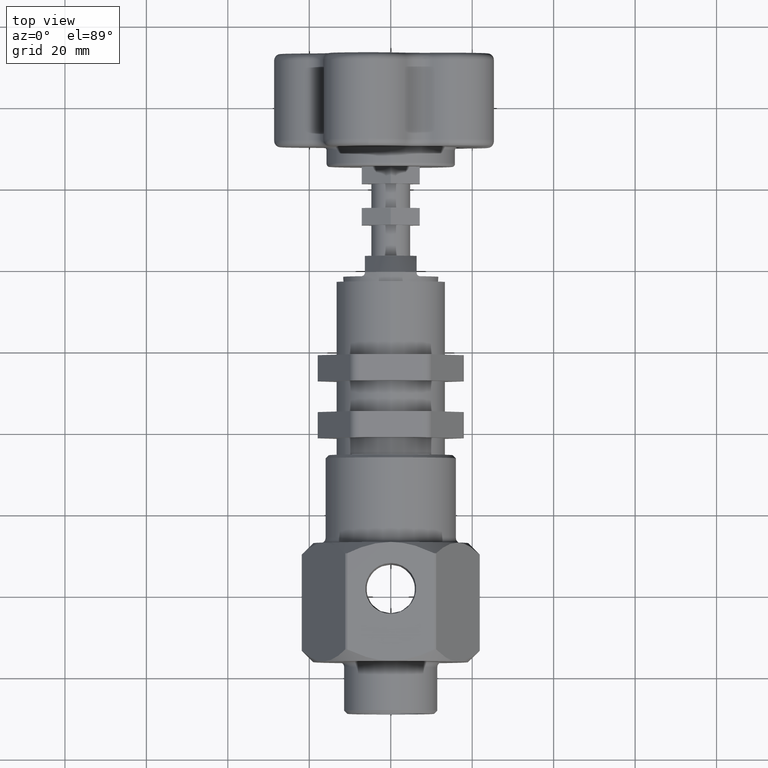
[diagram: clean part render]
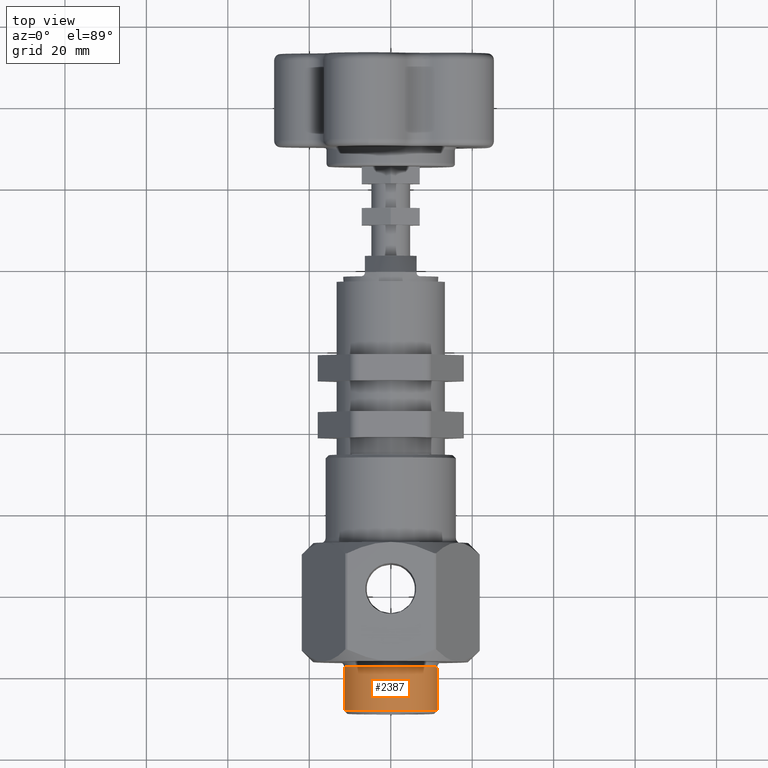
[diagram: same view with one face highlighted and labeled with its STEP entity id]
A machine part, top view. The second image highlights one B-rep face of the part: STEP entity #2387.
In plain terms, the highlighted cylindrical surface (partial cylindrical patch) has radius 11.43 mm, axis along (-0, 1, -0).
Its self-contained STEP definition (entity closure, byte-faithful):
#271 = VERTEX_POINT ( 'NONE', #7735 ) ;
#560 = DIRECTION ( 'NONE',  ( -5.302876193624532100E-017, 1.000000000000000000, -3.061616997868382400E-017 ) ) ;
#680 = VERTEX_POINT ( 'NONE', #2127 ) ;
#1013 = DIRECTION ( 'NONE',  ( -5.302876193624532700E-017, 1.000000000000000000, -3.061616997868382400E-017 ) ) ;
#1215 = DIRECTION ( 'NONE',  ( -5.302876193624532700E-017, 1.000000000000000000, -3.061616997868382400E-017 ) ) ;
#1565 = ORIENTED_EDGE ( 'NONE', *, *, #4949, .T. ) ;
#1704 = DIRECTION ( 'NONE',  ( -5.302876193624532700E-017, 1.000000000000000000, -3.061616997868382400E-017 ) ) ;
#1867 = CARTESIAN_POINT ( 'NONE',  ( 0.4500000000000001800, 1.033450559264014000, -5.147124618755402200E-017 ) ) ;
#1911 = CYLINDRICAL_SURFACE ( 'NONE', #2375, 0.4500000000000001800 ) ;
#2127 = CARTESIAN_POINT ( 'NONE',  ( -0.4500000000000000700, -1.484999999999999000, 1.204050665805496000E-016 ) ) ;
#2346 = DIRECTION ( 'NONE',  ( -1.000000000000000000, 0.0000000000000000000, 1.665334536937734600E-016 ) ) ;
#2375 = AXIS2_PLACEMENT_3D ( 'NONE', #6071, #1704, #2346 ) ;
#2387 = ADVANCED_FACE ( 'NONE', ( #4386 ), #1911, .T. ) ;
#2998 = VERTEX_POINT ( 'NONE', #7304 ) ;
#3017 = AXIS2_PLACEMENT_3D ( 'NONE', #4804, #1013, #5451 ) ;
#3018 = VECTOR ( 'NONE', #5663, 39.37007874015748100 ) ;
#3081 = CARTESIAN_POINT ( 'NONE',  ( -0.4500000000000001800, 1.033450559264014000, 4.329975617521123800E-017 ) ) ;
#3100 = CIRCLE ( 'NONE', #3017, 0.4500000000000001800 ) ;
#3215 = LINE ( 'NONE', #1867, #3018 ) ;
#4372 = CIRCLE ( 'NONE', #8030, 0.4500000000000001800 ) ;
#4386 = FACE_OUTER_BOUND ( 'NONE', #6258, .T. ) ;
#4429 = VERTEX_POINT ( 'NONE', #6114 ) ;
#4764 = EDGE_CURVE ( 'NONE', #271, #4429, #3215, .T. ) ;
#4804 = CARTESIAN_POINT ( 'NONE',  ( 1.351678914093506400E-016, -1.904999999999998900, 5.832380380939873300E-017 ) ) ;
#4949 = EDGE_CURVE ( 'NONE', #2998, #271, #3100, .T. ) ;
#5011 = CARTESIAN_POINT ( 'NONE',  ( 1.128958113961275900E-016, -1.484999999999999000, 4.546501241835152200E-017 ) ) ;
#5146 = ORIENTED_EDGE ( 'NONE', *, *, #7008, .F. ) ;
#5451 = DIRECTION ( 'NONE',  ( 1.000000000000000000, 0.0000000000000000000, -1.665334536937734600E-016 ) ) ;
#5513 = ORIENTED_EDGE ( 'NONE', *, *, #5877, .F. ) ;
#5647 = DIRECTION ( 'NONE',  ( -1.000000000000000000, 0.0000000000000000000, 1.665334536937734600E-016 ) ) ;
#5663 = DIRECTION ( 'NONE',  ( -5.302876193624532100E-017, 1.000000000000000000, -3.061616997868382400E-017 ) ) ;
#5877 = EDGE_CURVE ( 'NONE', #680, #4429, #4372, .T. ) ;
#6071 = CARTESIAN_POINT ( 'NONE',  ( -2.065450375928766600E-017, 1.033450559264014000, -3.164029798698684600E-017 ) ) ;
#6082 = VECTOR ( 'NONE', #560, 39.37007874015748100 ) ;
#6114 = CARTESIAN_POINT ( 'NONE',  ( 0.4500000000000002300, -1.484999999999999000, 3.206345991330794900E-017 ) ) ;
#6258 = EDGE_LOOP ( 'NONE', ( #1565, #6633, #5513, #5146 ) ) ;
#6633 = ORIENTED_EDGE ( 'NONE', *, *, #4764, .T. ) ;
#7008 = EDGE_CURVE ( 'NONE', #2998, #680, #7772, .T. ) ;
#7304 = CARTESIAN_POINT ( 'NONE',  ( -0.4500000000000000700, -1.904999999999998900, 1.332638579715968200E-016 ) ) ;
#7735 = CARTESIAN_POINT ( 'NONE',  ( 0.4500000000000003400, -1.904999999999998900, 3.849285560883157000E-017 ) ) ;
#7772 = LINE ( 'NONE', #3081, #6082 ) ;
#8030 = AXIS2_PLACEMENT_3D ( 'NONE', #5011, #1215, #5647 ) ;